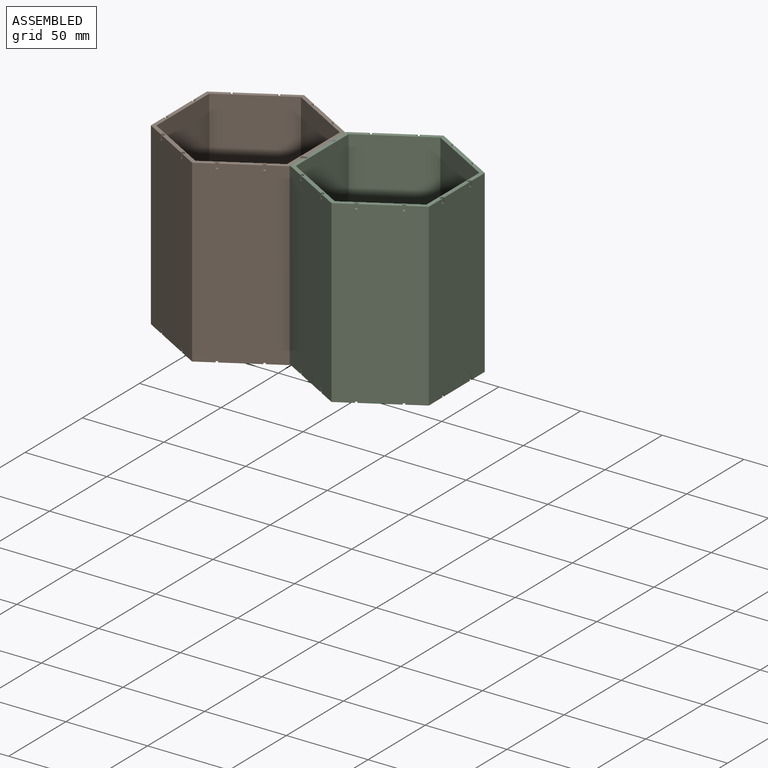
[diagram: assembled view]
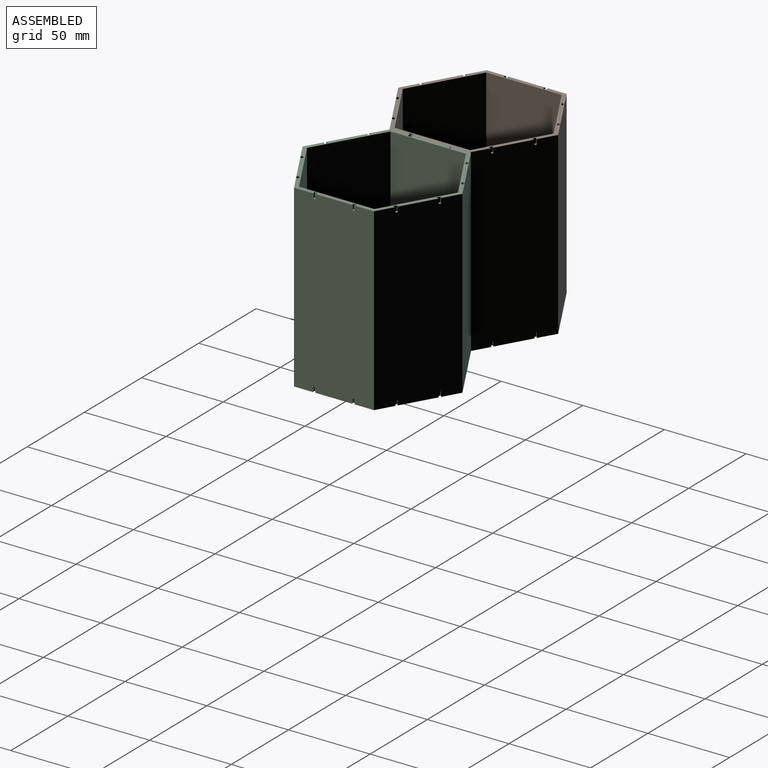
[diagram: assembled view, second angle]
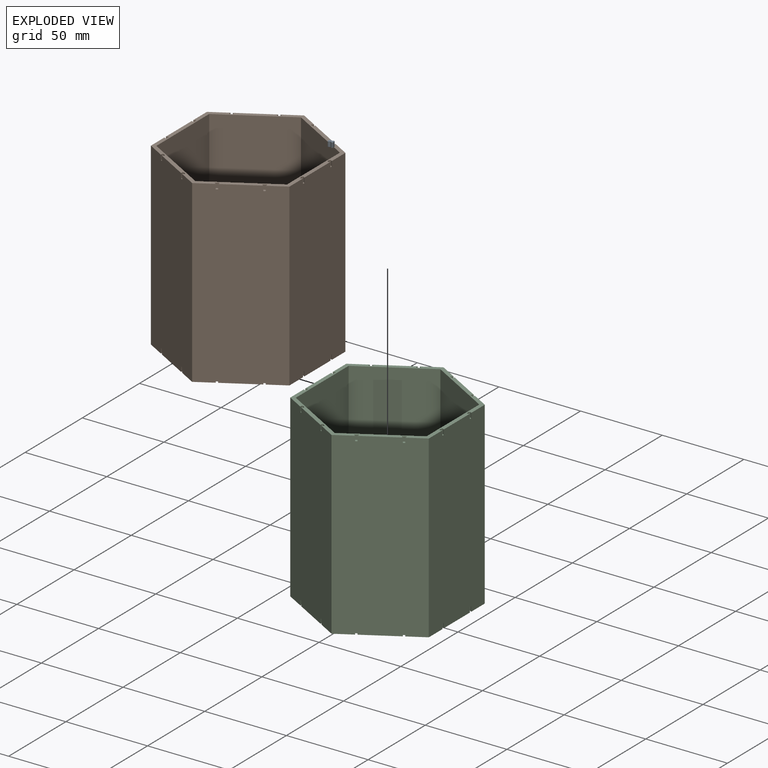
[diagram: exploded view]
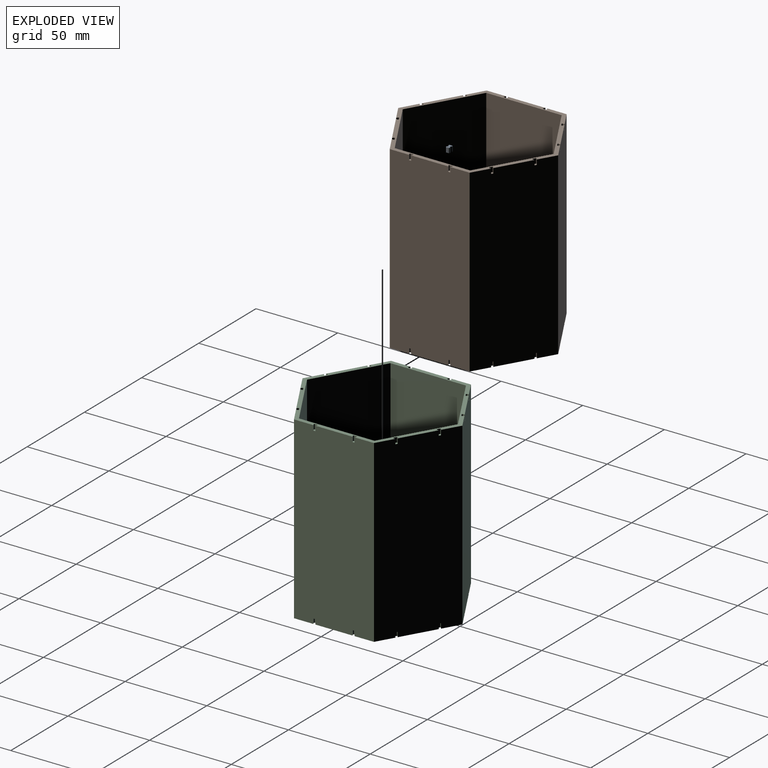
[diagram: exploded view, second angle]
ASSEMBLY  parts=3 mates=5
PART A: 12 faces, bbox 3.2x2.3x3 mm
  f0: cylinder r=0.5mm len=3mm, axis (0,0,1), area 3.1mm2, adj f1,f9,f10,f11
  f1: plane 3x1.32mm, normal (-1,0,0), area 3.9mm2, adj f0,f2,f10,f11
  f2: cylinder r=0.5mm len=3mm, axis (0,0,1), area 3.1mm2, adj f1,f3,f10,f11
  f3: plane 3x0.85mm, normal (0.5,-0.87,0), area 2.9mm2, adj f2,f4,f10,f11
  f4: plane 3x0.85mm, normal (-0.5,-0.87,0), area 2.9mm2, adj f3,f5,f10,f11
  f5: cylinder r=0.5mm len=3mm, axis (0,0,1), area 3.1mm2, adj f4,f6,f10,f11
  f6: plane 3x1.32mm, normal (1,0,0), area 3.9mm2, adj f5,f7,f10,f11
  f7: cylinder r=0.5mm len=3mm, axis (0,0,1), area 3.1mm2, adj f6,f8,f10,f11
  f8: plane 3x0.85mm, normal (-0.5,0.87,0), area 2.9mm2, adj f7,f9,f10,f11
  f9: plane 3x0.85mm, normal (0.5,0.87,0), area 2.9mm2, adj f0,f8,f10,f11
  f10: plane 3.2x2.32mm, normal (0,0,-1), area 6.1mm2, adj f0,f1,f2,f3,f4,f5,f6,f7
  f11: plane 3.2x2.32mm, normal (0,0,1), area 6.1mm2, adj f0,f1,f2,f3,f4,f5,f6,f7
PART B: 158 faces, bbox 84.8x97.9x110 mm
  f0: plane 97.92x84.8mm, normal (0,0,1), area 648.4mm2, adj f1,f2,f3,f4,f5,f6,f7,f8
  f1: plane 110x40mm, normal (-0.5,-0.87,0), area 5080.7mm2, adj f0,f2,f12,f85
  f2: plane 110x46.19mm, normal (-1,0,0), area 5080.7mm2, adj f0,f1,f3,f85
  f3: plane 110x40mm, normal (-0.5,0.87,0), area 5080.7mm2, adj f0,f2,f4,f85
  f4: plane 110x40mm, normal (0.5,0.87,0), area 5080.7mm2, adj f0,f3,f5,f85
  f5: plane 110x46.19mm, normal (1,0,0), area 5080.7mm2, adj f0,f4,f12,f85
  f6: plane 110x48.96mm, normal (1,0,0), area 5371.1mm2, adj f0,f7,f11,f43,f44,f48,f49,f50
  f7: plane 110x42.4mm, normal (0.5,0.87,0), area 5371.1mm2, adj f0,f6,f8,f31,f32,f36,f37,f38
  f8: plane 110x42.4mm, normal (-0.5,0.87,0), area 5371.1mm2, adj f0,f7,f9,f19,f20,f24,f25,f26
  f9: plane 110x48.96mm, normal (-1,0,0), area 5371.1mm2, adj f0,f8,f10,f13,f14,f18,f79,f83
  f10: plane 110x42.4mm, normal (-0.5,-0.87,0), area 5371.1mm2, adj f0,f9,f11,f67,f68,f72,f73,f74
  f11: plane 110x42.4mm, normal (0.5,-0.87,0), area 5371.1mm2, adj f0,f6,f10,f55,f56,f60,f61,f62
  f12: plane 110x40mm, normal (0.5,-0.87,0), area 5080.7mm2, adj f0,f1,f5,f85
  f13: plane 3x0.85mm, normal (0.5,-0.87,0), area 2.9mm2, adj f0,f9,f17,f18
  f14: plane 3x0.85mm, normal (0.5,0.87,0), area 2.9mm2, adj f0,f9,f15,f18
  f15: cylinder r=0.5mm len=3mm, axis (0,0,1), area 3.1mm2, adj f0,f14,f16,f18
  f16: plane 3x1.32mm, normal (-1,0,0), area 3.9mm2, adj f0,f15,f17,f18
  f17: cylinder r=0.5mm len=3mm, axis (0,0,1), area 3.1mm2, adj f0,f13,f16,f18
  f18: plane 2.32x1.6mm, normal (0,0,1), area 3.1mm2, adj f9,f13,f14,f15,f16,f17
  f19: plane 3x0.85mm, normal (-0.5,-0.87,0), area 2.9mm2, adj f0,f8,f23,f24
  f20: plane 3x0.98mm, normal (1,0,0), area 2.9mm2, adj f0,f8,f21,f24
  f21: cylinder r=0.5mm len=3mm, axis (0,0,1), area 3.1mm2, adj f0,f20,f22,f24
  f22: plane 3x1.14mm, normal (-0.5,0.87,0), area 3.9mm2, adj f0,f21,f23,f24
  f23: cylinder r=0.5mm len=3mm, axis (0,0,1), area 3.1mm2, adj f0,f19,f22,f24
  f24: plane 2.14x2.08mm, normal (0,0,1), area 3.1mm2, adj f8,f19,f20,f21,f22,f23
  f25: plane 3x0.85mm, normal (-0.5,-0.87,0), area 2.9mm2, adj f0,f8,f29,f30
  f26: plane 3x0.98mm, normal (1,0,0), area 2.9mm2, adj f0,f8,f27,f30
  f27: cylinder r=0.5mm len=3mm, axis (0,0,1), area 3.1mm2, adj f0,f26,f28,f30
  f28: plane 3x1.14mm, normal (-0.5,0.87,0), area 3.9mm2, adj f0,f27,f29,f30
  f29: cylinder r=0.5mm len=3mm, axis (0,0,1), area 3.1mm2, adj f0,f25,f28,f30
  f30: plane 2.14x2.08mm, normal (0,0,1), area 3.1mm2, adj f8,f25,f26,f27,f28,f29
  f31: plane 3x0.98mm, normal (-1,0,0), area 2.9mm2, adj f0,f7,f35,f36
  f32: plane 3x0.85mm, normal (0.5,-0.87,0), area 2.9mm2, adj f0,f7,f33,f36
  f33: cylinder r=0.5mm len=3mm, axis (0,0,1), area 3.1mm2, adj f0,f32,f34,f36
  f34: plane 3x1.14mm, normal (0.5,0.87,0), area 3.9mm2, adj f0,f33,f35,f36
  f35: cylinder r=0.5mm len=3mm, axis (0,0,1), area 3.1mm2, adj f0,f31,f34,f36
  f36: plane 2.14x2.08mm, normal (0,0,1), area 3.1mm2, adj f7,f31,f32,f33,f34,f35
  f37: plane 3x0.98mm, normal (-1,0,0), area 2.9mm2, adj f0,f7,f41,f42
  f38: plane 3x0.85mm, normal (0.5,-0.87,0), area 2.9mm2, adj f0,f7,f39,f42
  f39: cylinder r=0.5mm len=3mm, axis (0,0,1), area 3.1mm2, adj f0,f38,f40,f42
  f40: plane 3x1.14mm, normal (0.5,0.87,0), area 3.9mm2, adj f0,f39,f41,f42
  f41: cylinder r=0.5mm len=3mm, axis (0,0,1), area 3.1mm2, adj f0,f37,f40,f42
  f42: plane 2.14x2.08mm, normal (0,0,1), area 3.1mm2, adj f7,f37,f38,f39,f40,f41
  f43: plane 3x0.85mm, normal (-0.5,0.87,0), area 2.9mm2, adj f0,f6,f47,f48
  f44: plane 3x0.85mm, normal (-0.5,-0.87,0), area 2.9mm2, adj f0,f6,f45,f48
  f45: cylinder r=0.5mm len=3mm, axis (0,0,1), area 3.1mm2, adj f0,f44,f46,f48
  f46: plane 3x1.32mm, normal (1,0,0), area 3.9mm2, adj f0,f45,f47,f48
  f47: cylinder r=0.5mm len=3mm, axis (0,0,1), area 3.1mm2, adj f0,f43,f46,f48
  f48: plane 2.32x1.6mm, normal (0,0,1), area 3.1mm2, adj f6,f43,f44,f45,f46,f47
  f49: plane 3x0.85mm, normal (-0.5,0.87,0), area 2.9mm2, adj f0,f6,f53,f54
  f50: plane 3x0.85mm, normal (-0.5,-0.87,0), area 2.9mm2, adj f0,f6,f51,f54
  f51: cylinder r=0.5mm len=3mm, axis (0,0,1), area 3.1mm2, adj f0,f50,f52,f54
  f52: plane 3x1.32mm, normal (1,0,0), area 3.9mm2, adj f0,f51,f53,f54
  f53: cylinder r=0.5mm len=3mm, axis (0,0,1), area 3.1mm2, adj f0,f49,f52,f54
  f54: plane 2.32x1.6mm, normal (0,0,1), area 3.1mm2, adj f6,f49,f50,f51,f52,f53
  f55: plane 3x0.85mm, normal (0.5,0.87,0), area 2.9mm2, adj f0,f11,f59,f60
  f56: plane 3x0.98mm, normal (-1,0,0), area 2.9mm2, adj f0,f11,f57,f60
  f57: cylinder r=0.5mm len=3mm, axis (0,0,1), area 3.1mm2, adj f0,f56,f58,f60
  f58: plane 3x1.14mm, normal (0.5,-0.87,0), area 3.9mm2, adj f0,f57,f59,f60
  f59: cylinder r=0.5mm len=3mm, axis (0,0,1), area 3.1mm2, adj f0,f55,f58,f60
  f60: plane 2.14x2.08mm, normal (0,0,1), area 3.1mm2, adj f11,f55,f56,f57,f58,f59
  f61: plane 3x0.85mm, normal (0.5,0.87,0), area 2.9mm2, adj f0,f11,f65,f66
  f62: plane 3x0.98mm, normal (-1,0,0), area 2.9mm2, adj f0,f11,f63,f66
  f63: cylinder r=0.5mm len=3mm, axis (0,0,1), area 3.1mm2, adj f0,f62,f64,f66
  f64: plane 3x1.14mm, normal (0.5,-0.87,0), area 3.9mm2, adj f0,f63,f65,f66
  f65: cylinder r=0.5mm len=3mm, axis (0,0,1), area 3.1mm2, adj f0,f61,f64,f66
  f66: plane 2.14x2.08mm, normal (0,0,1), area 3.1mm2, adj f11,f61,f62,f63,f64,f65
  f67: plane 3x0.98mm, normal (1,0,0), area 2.9mm2, adj f0,f10,f71,f72
  f68: plane 3x0.85mm, normal (-0.5,0.87,0), area 2.9mm2, adj f0,f10,f69,f72
  f69: cylinder r=0.5mm len=3mm, axis (0,0,1), area 3.1mm2, adj f0,f68,f70,f72
  f70: plane 3x1.14mm, normal (-0.5,-0.87,0), area 3.9mm2, adj f0,f69,f71,f72
  f71: cylinder r=0.5mm len=3mm, axis (0,0,1), area 3.1mm2, adj f0,f67,f70,f72
  f72: plane 2.14x2.08mm, normal (0,0,1), area 3.1mm2, adj f10,f67,f68,f69,f70,f71
  f73: plane 3x0.98mm, normal (1,0,0), area 2.9mm2, adj f0,f10,f77,f78
  f74: plane 3x0.85mm, normal (-0.5,0.87,0), area 2.9mm2, adj f0,f10,f75,f78
  f75: cylinder r=0.5mm len=3mm, axis (0,0,1), area 3.1mm2, adj f0,f74,f76,f78
  f76: plane 3x1.14mm, normal (-0.5,-0.87,0), area 3.9mm2, adj f0,f75,f77,f78
  f77: cylinder r=0.5mm len=3mm, axis (0,0,1), area 3.1mm2, adj f0,f73,f76,f78
  f78: plane 2.14x2.08mm, normal (0,0,1), area 3.1mm2, adj f10,f73,f74,f75,f76,f77
  f79: plane 3x0.85mm, normal (0.5,0.87,0), area 2.9mm2, adj f0,f9,f80,f84
  f80: cylinder r=0.5mm len=3mm, axis (0,0,1), area 3.1mm2, adj f0,f79,f81,f84
  f81: plane 3x1.32mm, normal (-1,0,0), area 3.9mm2, adj f0,f80,f82,f84
  f82: cylinder r=0.5mm len=3mm, axis (0,0,1), area 3.1mm2, adj f0,f81,f83,f84
  f83: plane 3x0.85mm, normal (0.5,-0.87,0), area 2.9mm2, adj f0,f9,f82,f84
  f84: plane 2.32x1.6mm, normal (0,0,1), area 3.1mm2, adj f9,f79,f80,f81,f82,f83
  f85: plane 97.92x84.8mm, normal (0,0,-1), area 648.4mm2, adj f1,f2,f3,f4,f5,f6,f7,f8
  f86: plane 3x0.85mm, normal (0.5,-0.87,0), area 2.9mm2, adj f9,f85,f90,f91
  f87: plane 3x0.85mm, normal (0.5,0.87,0), area 2.9mm2, adj f9,f85,f88,f91
  f88: cylinder r=0.5mm len=3mm, axis (0,0,-1), area 3.1mm2, adj f85,f87,f89,f91
  f89: plane 3x1.32mm, normal (-1,0,0), area 3.9mm2, adj f85,f88,f90,f91
  f90: cylinder r=0.5mm len=3mm, axis (0,0,-1), area 3.1mm2, adj f85,f86,f89,f91
  f91: plane 2.32x1.6mm, normal (0,0,-1), area 3.1mm2, adj f9,f86,f87,f88,f89,f90
  f92: plane 3x0.85mm, normal (-0.5,-0.87,0), area 2.9mm2, adj f8,f85,f96,f97
  f93: plane 3x0.98mm, normal (1,0,0), area 2.9mm2, adj f8,f85,f94,f97
  f94: cylinder r=0.5mm len=3mm, axis (0,0,-1), area 3.1mm2, adj f85,f93,f95,f97
  f95: plane 3x1.14mm, normal (-0.5,0.87,0), area 3.9mm2, adj f85,f94,f96,f97
  f96: cylinder r=0.5mm len=3mm, axis (0,0,-1), area 3.1mm2, adj f85,f92,f95,f97
  f97: plane 2.14x2.08mm, normal (0,0,-1), area 3.1mm2, adj f8,f92,f93,f94,f95,f96
  f98: plane 3x0.85mm, normal (-0.5,-0.87,0), area 2.9mm2, adj f8,f85,f102,f103
  f99: plane 3x0.98mm, normal (1,0,0), area 2.9mm2, adj f8,f85,f100,f103
  f100: cylinder r=0.5mm len=3mm, axis (0,0,-1), area 3.1mm2, adj f85,f99,f101,f103
  f101: plane 3x1.14mm, normal (-0.5,0.87,0), area 3.9mm2, adj f85,f100,f102,f103
  f102: cylinder r=0.5mm len=3mm, axis (0,0,-1), area 3.1mm2, adj f85,f98,f101,f103
  f103: plane 2.14x2.08mm, normal (0,0,-1), area 3.1mm2, adj f8,f98,f99,f100,f101,f102
  f104: plane 3x0.98mm, normal (-1,0,0), area 2.9mm2, adj f7,f85,f108,f109
  f105: plane 3x0.85mm, normal (0.5,-0.87,0), area 2.9mm2, adj f7,f85,f106,f109
  f106: cylinder r=0.5mm len=3mm, axis (0,0,-1), area 3.1mm2, adj f85,f105,f107,f109
  f107: plane 3x1.14mm, normal (0.5,0.87,0), area 3.9mm2, adj f85,f106,f108,f109
  f108: cylinder r=0.5mm len=3mm, axis (0,0,-1), area 3.1mm2, adj f85,f104,f107,f109
  f109: plane 2.14x2.08mm, normal (0,0,-1), area 3.1mm2, adj f7,f104,f105,f106,f107,f108
  f110: plane 3x0.98mm, normal (-1,0,0), area 2.9mm2, adj f7,f85,f114,f115
  f111: plane 3x0.85mm, normal (0.5,-0.87,0), area 2.9mm2, adj f7,f85,f112,f115
  f112: cylinder r=0.5mm len=3mm, axis (0,0,-1), area 3.1mm2, adj f85,f111,f113,f115
  f113: plane 3x1.14mm, normal (0.5,0.87,0), area 3.9mm2, adj f85,f112,f114,f115
  f114: cylinder r=0.5mm len=3mm, axis (0,0,-1), area 3.1mm2, adj f85,f110,f113,f115
  f115: plane 2.14x2.08mm, normal (0,0,-1), area 3.1mm2, adj f7,f110,f111,f112,f113,f114
  f116: plane 3x0.85mm, normal (-0.5,0.87,0), area 2.9mm2, adj f6,f85,f120,f121
  f117: plane 3x0.85mm, normal (-0.5,-0.87,0), area 2.9mm2, adj f6,f85,f118,f121
  f118: cylinder r=0.5mm len=3mm, axis (0,0,-1), area 3.1mm2, adj f85,f117,f119,f121
  f119: plane 3x1.32mm, normal (1,0,0), area 3.9mm2, adj f85,f118,f120,f121
  f120: cylinder r=0.5mm len=3mm, axis (0,0,-1), area 3.1mm2, adj f85,f116,f119,f121
  f121: plane 2.32x1.6mm, normal (0,0,-1), area 3.1mm2, adj f6,f116,f117,f118,f119,f120
  f122: plane 3x0.85mm, normal (-0.5,0.87,0), area 2.9mm2, adj f6,f85,f126,f127
  f123: plane 3x0.85mm, normal (-0.5,-0.87,0), area 2.9mm2, adj f6,f85,f124,f127
  f124: cylinder r=0.5mm len=3mm, axis (0,0,-1), area 3.1mm2, adj f85,f123,f125,f127
  f125: plane 3x1.32mm, normal (1,0,0), area 3.9mm2, adj f85,f124,f126,f127
  f126: cylinder r=0.5mm len=3mm, axis (0,0,-1), area 3.1mm2, adj f85,f122,f125,f127
  f127: plane 2.32x1.6mm, normal (0,0,-1), area 3.1mm2, adj f6,f122,f123,f124,f125,f126
  f128: plane 3x0.85mm, normal (0.5,0.87,0), area 2.9mm2, adj f11,f85,f132,f133
  f129: plane 3x0.98mm, normal (-1,0,0), area 2.9mm2, adj f11,f85,f130,f133
  f130: cylinder r=0.5mm len=3mm, axis (0,0,-1), area 3.1mm2, adj f85,f129,f131,f133
  f131: plane 3x1.14mm, normal (0.5,-0.87,0), area 3.9mm2, adj f85,f130,f132,f133
  f132: cylinder r=0.5mm len=3mm, axis (0,0,-1), area 3.1mm2, adj f85,f128,f131,f133
  f133: plane 2.14x2.08mm, normal (0,0,-1), area 3.1mm2, adj f11,f128,f129,f130,f131,f132
  f134: plane 3x0.85mm, normal (0.5,0.87,0), area 2.9mm2, adj f11,f85,f138,f139
  f135: plane 3x0.98mm, normal (-1,0,0), area 2.9mm2, adj f11,f85,f136,f139
  f136: cylinder r=0.5mm len=3mm, axis (0,0,-1), area 3.1mm2, adj f85,f135,f137,f139
  f137: plane 3x1.14mm, normal (0.5,-0.87,0), area 3.9mm2, adj f85,f136,f138,f139
  f138: cylinder r=0.5mm len=3mm, axis (0,0,-1), area 3.1mm2, adj f85,f134,f137,f139
  f139: plane 2.14x2.08mm, normal (0,0,-1), area 3.1mm2, adj f11,f134,f135,f136,f137,f138
  f140: plane 3x0.98mm, normal (1,0,0), area 2.9mm2, adj f10,f85,f144,f145
  f141: plane 3x0.85mm, normal (-0.5,0.87,0), area 2.9mm2, adj f10,f85,f142,f145
  f142: cylinder r=0.5mm len=3mm, axis (0,0,-1), area 3.1mm2, adj f85,f141,f143,f145
  f143: plane 3x1.14mm, normal (-0.5,-0.87,0), area 3.9mm2, adj f85,f142,f144,f145
  f144: cylinder r=0.5mm len=3mm, axis (0,0,-1), area 3.1mm2, adj f85,f140,f143,f145
  f145: plane 2.14x2.08mm, normal (0,0,-1), area 3.1mm2, adj f10,f140,f141,f142,f143,f144
  f146: plane 3x0.98mm, normal (1,0,0), area 2.9mm2, adj f10,f85,f150,f151
  f147: plane 3x0.85mm, normal (-0.5,0.87,0), area 2.9mm2, adj f10,f85,f148,f151
  f148: cylinder r=0.5mm len=3mm, axis (0,0,-1), area 3.1mm2, adj f85,f147,f149,f151
  f149: plane 3x1.14mm, normal (-0.5,-0.87,0), area 3.9mm2, adj f85,f148,f150,f151
  f150: cylinder r=0.5mm len=3mm, axis (0,0,-1), area 3.1mm2, adj f85,f146,f149,f151
  f151: plane 2.14x2.08mm, normal (0,0,-1), area 3.1mm2, adj f10,f146,f147,f148,f149,f150
  f152: plane 3x0.85mm, normal (0.5,0.87,0), area 2.9mm2, adj f9,f85,f153,f157
  f153: cylinder r=0.5mm len=3mm, axis (0,0,-1), area 3.1mm2, adj f85,f152,f154,f157
  f154: plane 3x1.32mm, normal (-1,0,0), area 3.9mm2, adj f85,f153,f155,f157
  f155: cylinder r=0.5mm len=3mm, axis (0,0,-1), area 3.1mm2, adj f85,f154,f156,f157
  f156: plane 3x0.85mm, normal (0.5,-0.87,0), area 2.9mm2, adj f9,f85,f155,f157
  f157: plane 2.32x1.6mm, normal (0,0,-1), area 3.1mm2, adj f9,f152,f153,f154,f155,f156
PART C: same geometry as B
PLACE A t=(-270.11,16.17,3.32)mm
PLACE B t=(-181.35,4.17,3.32)mm
PLACE C t=(-96.55,4.94,3.32)mm
MATE planar B.f6 <-> C.f9  axis (1,0,0) through (-138.95,4.17,-51.68)mm
MATE planar C.f18 <-> A.f10  axis (0,0,1) through (-138.95,16.94,0.32)mm
MATE planar B.f48 <-> A.f0  axis (0,0,1) through (-139.81,16.17,0.32)mm
MATE planar B.f43 <-> A.f3  axis (-0.5,0.87,0) through (-139.37,15.32,1.82)mm
MATE planar A.f6 <-> C.f16  axis (1,0,0) through (-137.35,16.17,1.82)mm
